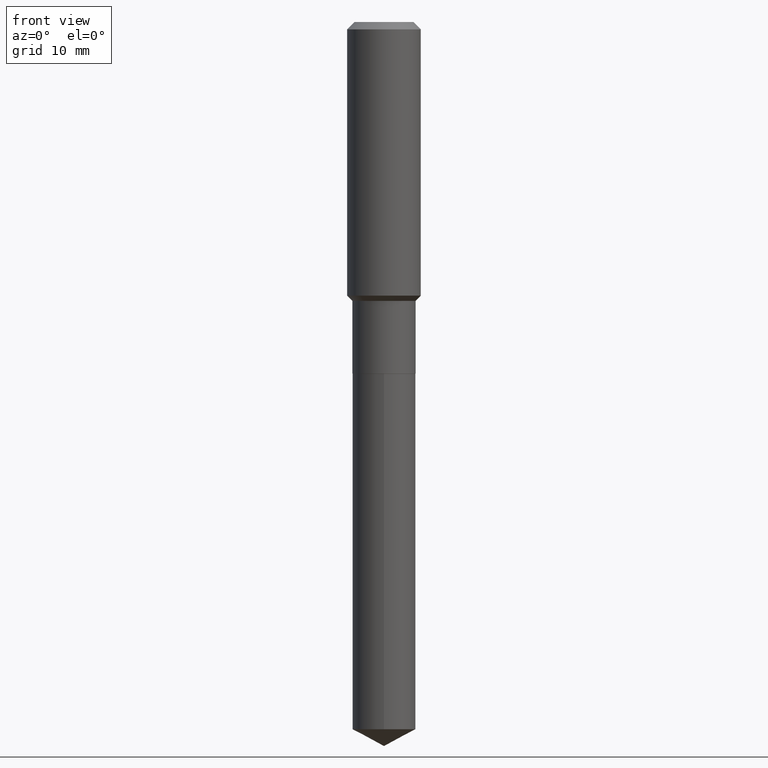
[diagram: clean part render]
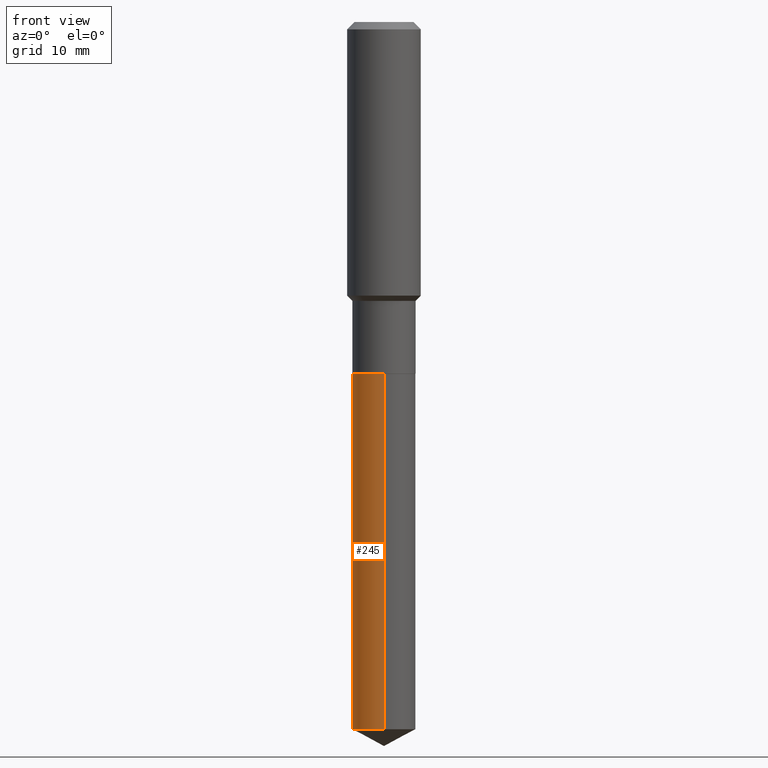
[diagram: same view with one face highlighted and labeled with its STEP entity id]
A machine part, front view. The second image highlights one B-rep face of the part: STEP entity #245.
In plain terms, the highlighted cylindrical surface (edge-blend (fillet) strip) has radius 5.1498 mm, axis along (-0, 0, 1).
Its self-contained STEP definition (entity closure, byte-faithful):
#8 = VECTOR ( 'NONE', #164, 39.37007874015748143 ) ;
#15 = CARTESIAN_POINT ( 'NONE',  ( 1.440625396753714058E-15, 0.2027499999999921310, -2.255900000000000016 ) ) ;
#18 = DIRECTION ( 'NONE',  ( -2.445450010346180053E-29, 3.491508255554324007E-15, 1.000000000000000000 ) ) ;
#30 = AXIS2_PLACEMENT_3D ( 'NONE', #85, #257, #251 ) ;
#38 = CIRCLE ( 'NONE', #116, 0.2027500000000000135 ) ;
#40 = EDGE_CURVE ( 'NONE', #424, #115, #460, .T. ) ;
#48 = LINE ( 'NONE', #100, #191 ) ;
#50 = ORIENTED_EDGE ( 'NONE', *, *, #114, .F. ) ;
#58 = DIRECTION ( 'NONE',  ( -2.445450010346180333E-29, 3.491508255554324402E-15, 1.000000000000000000 ) ) ;
#72 = DIRECTION ( 'NONE',  ( -6.982962677686265922E-15, -1.000000000000000000, 4.042191852524186848E-15 ) ) ;
#85 = CARTESIAN_POINT ( 'NONE',  ( 5.516733079873047692E-29, -7.876432752296249824E-15, -2.255899999999999128 ) ) ;
#100 = CARTESIAN_POINT ( 'NONE',  ( 1.440625396753658049E-15, 0.2027499999999921310, -2.255900000000000016 ) ) ;
#114 = EDGE_CURVE ( 'NONE', #274, #115, #353, .T. ) ;
#115 = VERTEX_POINT ( 'NONE', #463 ) ;
#116 = AXIS2_PLACEMENT_3D ( 'NONE', #397, #18, #405 ) ;
#134 = AXIS2_PLACEMENT_3D ( 'NONE', #198, #312, #72 ) ;
#136 = CARTESIAN_POINT ( 'NONE',  ( -1.415795682900779441E-15, -0.2027500000000158065, -4.537895912730635750 ) ) ;
#164 = DIRECTION ( 'NONE',  ( -2.445450010346180333E-29, 3.491508255554324402E-15, 1.000000000000000000 ) ) ;
#191 = VECTOR ( 'NONE', #58, 39.37007874015748143 ) ;
#194 = ORIENTED_EDGE ( 'NONE', *, *, #269, .T. ) ;
#198 = CARTESIAN_POINT ( 'NONE',  ( 5.516733079873047692E-29, -7.876432752296249824E-15, -2.255899999999999128 ) ) ;
#199 = ORIENTED_EDGE ( 'NONE', *, *, #40, .T. ) ;
#245 = ADVANCED_FACE ( 'NONE', ( #342 ), #432, .T. ) ;
#248 = CARTESIAN_POINT ( 'NONE',  ( -1.415795682900835253E-15, -0.2027500000000078961, -2.255899999999998684 ) ) ;
#251 = DIRECTION ( 'NONE',  ( -6.982962677686265922E-15, -1.000000000000000000, 4.042191852524186848E-15 ) ) ;
#257 = DIRECTION ( 'NONE',  ( -2.445450010346180053E-29, 3.491508255554324007E-15, 1.000000000000000000 ) ) ;
#269 = EDGE_CURVE ( 'NONE', #349, #424, #38, .T. ) ;
#274 = VERTEX_POINT ( 'NONE', #15 ) ;
#312 = DIRECTION ( 'NONE',  ( -2.445450010346180053E-29, 3.491508255554324007E-15, 1.000000000000000000 ) ) ;
#342 = FACE_OUTER_BOUND ( 'NONE', #390, .T. ) ;
#343 = EDGE_CURVE ( 'NONE', #349, #274, #48, .T. ) ;
#349 = VERTEX_POINT ( 'NONE', #464 ) ;
#353 = CIRCLE ( 'NONE', #134, 0.2027500000000000135 ) ;
#390 = EDGE_LOOP ( 'NONE', ( #489, #194, #199, #50 ) ) ;
#397 = CARTESIAN_POINT ( 'NONE',  ( 1.109724000827012398E-28, -1.584404032073649329E-14, -4.537895912730635750 ) ) ;
#405 = DIRECTION ( 'NONE',  ( -6.982962677686265922E-15, -1.000000000000000000, 2.694794568349458162E-15 ) ) ;
#424 = VERTEX_POINT ( 'NONE', #136 ) ;
#432 = CYLINDRICAL_SURFACE ( 'NONE', #30, 0.2027500000000000135 ) ;
#460 = LINE ( 'NONE', #248, #8 ) ;
#463 = CARTESIAN_POINT ( 'NONE',  ( -1.415795682900835253E-15, -0.2027500000000078961, -2.255899999999998684 ) ) ;
#464 = CARTESIAN_POINT ( 'NONE',  ( 1.440625396753713861E-15, 0.2027499999999841651, -4.537895912730636638 ) ) ;
#489 = ORIENTED_EDGE ( 'NONE', *, *, #343, .F. ) ;